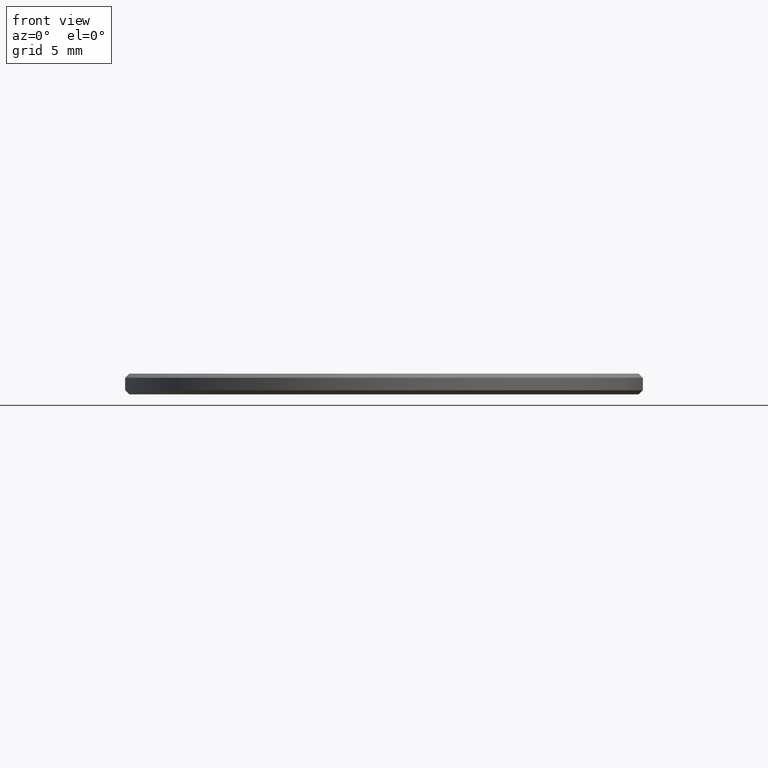
[diagram: clean part render]
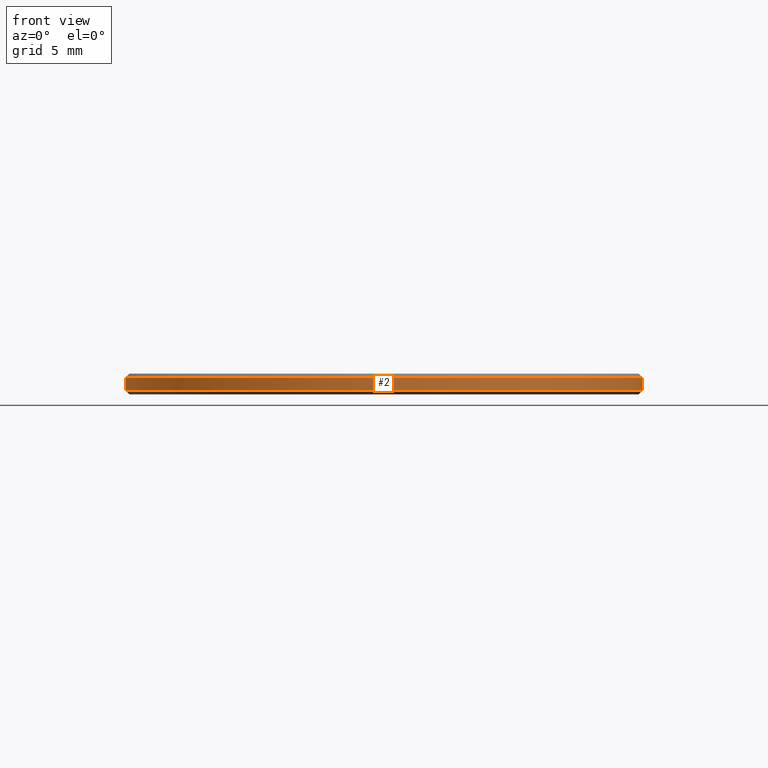
[diagram: same view with one face highlighted and labeled with its STEP entity id]
A machine part, front view. The second image highlights one B-rep face of the part: STEP entity #2.
In plain terms, the highlighted cylindrical surface (partial cylindrical patch) has radius 12.5 mm, axis along (-0, -0, -1).
Its self-contained STEP definition (entity closure, byte-faithful):
#1 = VECTOR ( 'NONE', #26, 1000.000000000000000 ) ;
#2 = ADVANCED_FACE ( 'NONE', ( #158 ), #50, .T. ) ;
#11 = DIRECTION ( 'NONE',  ( -0.000000000000000000, -0.000000000000000000, -1.000000000000000000 ) ) ;
#26 = DIRECTION ( 'NONE',  ( -0.000000000000000000, -0.000000000000000000, -1.000000000000000000 ) ) ;
#29 = AXIS2_PLACEMENT_3D ( 'NONE', #39, #110, #131 ) ;
#31 = EDGE_CURVE ( 'NONE', #33, #44, #195, .T. ) ;
#33 = VERTEX_POINT ( 'NONE', #37 ) ;
#37 = CARTESIAN_POINT ( 'NONE',  ( 12.50000000000000000, 1.530808498934191521E-15, 0.8000000000000029310 ) ) ;
#39 = CARTESIAN_POINT ( 'NONE',  ( 0.000000000000000000, 0.000000000000000000, 0.1999999999999987899 ) ) ;
#44 = VERTEX_POINT ( 'NONE', #121 ) ;
#50 = CYLINDRICAL_SURFACE ( 'NONE', #166, 12.50000000000000000 ) ;
#56 = EDGE_CURVE ( 'NONE', #90, #157, #137, .T. ) ;
#67 = EDGE_LOOP ( 'NONE', ( #160, #148, #127, #103 ) ) ;
#90 = VERTEX_POINT ( 'NONE', #198 ) ;
#103 = ORIENTED_EDGE ( 'NONE', *, *, #56, .T. ) ;
#110 = DIRECTION ( 'NONE',  ( -0.000000000000000000, -0.000000000000000000, 1.000000000000000000 ) ) ;
#112 = AXIS2_PLACEMENT_3D ( 'NONE', #149, #196, #212 ) ;
#115 = LINE ( 'NONE', #229, #120 ) ;
#120 = VECTOR ( 'NONE', #184, 1000.000000000000000 ) ;
#121 = CARTESIAN_POINT ( 'NONE',  ( -12.50000000000000000, 0.000000000000000000, 0.8000000000000029310 ) ) ;
#127 = ORIENTED_EDGE ( 'NONE', *, *, #161, .T. ) ;
#131 = DIRECTION ( 'NONE',  ( 1.000000000000000000, 0.000000000000000000, 0.000000000000000000 ) ) ;
#135 = EDGE_CURVE ( 'NONE', #33, #157, #115, .T. ) ;
#137 = CIRCLE ( 'NONE', #29, 12.50000000000000000 ) ;
#138 = CARTESIAN_POINT ( 'NONE',  ( 12.50000000000000000, 1.530808498934191521E-15, 0.1999999999999987899 ) ) ;
#148 = ORIENTED_EDGE ( 'NONE', *, *, #31, .T. ) ;
#149 = CARTESIAN_POINT ( 'NONE',  ( 0.000000000000000000, 0.000000000000000000, 0.8000000000000029310 ) ) ;
#152 = LINE ( 'NONE', #186, #1 ) ;
#156 = CARTESIAN_POINT ( 'NONE',  ( 0.000000000000000000, 0.000000000000000000, 1.000000000000000000 ) ) ;
#157 = VERTEX_POINT ( 'NONE', #138 ) ;
#158 = FACE_OUTER_BOUND ( 'NONE', #67, .T. ) ;
#160 = ORIENTED_EDGE ( 'NONE', *, *, #135, .F. ) ;
#161 = EDGE_CURVE ( 'NONE', #44, #90, #152, .T. ) ;
#166 = AXIS2_PLACEMENT_3D ( 'NONE', #156, #11, #217 ) ;
#184 = DIRECTION ( 'NONE',  ( -0.000000000000000000, -0.000000000000000000, -1.000000000000000000 ) ) ;
#186 = CARTESIAN_POINT ( 'NONE',  ( -12.50000000000000000, 0.000000000000000000, 1.000000000000000000 ) ) ;
#195 = CIRCLE ( 'NONE', #112, 12.50000000000000000 ) ;
#196 = DIRECTION ( 'NONE',  ( 0.000000000000000000, 0.000000000000000000, -1.000000000000000000 ) ) ;
#198 = CARTESIAN_POINT ( 'NONE',  ( -12.50000000000000000, 0.000000000000000000, 0.1999999999999987899 ) ) ;
#212 = DIRECTION ( 'NONE',  ( 1.000000000000000000, 0.000000000000000000, 0.000000000000000000 ) ) ;
#217 = DIRECTION ( 'NONE',  ( -1.000000000000000000, 0.000000000000000000, 0.000000000000000000 ) ) ;
#229 = CARTESIAN_POINT ( 'NONE',  ( 12.50000000000000000, 1.530808498934191521E-15, 1.000000000000000000 ) ) ;